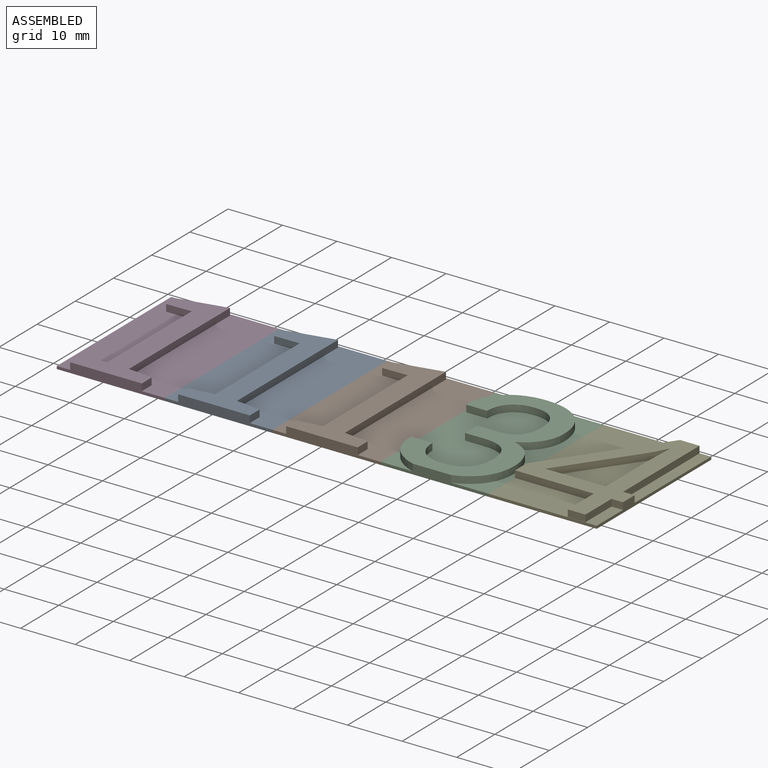
[diagram: assembled view]
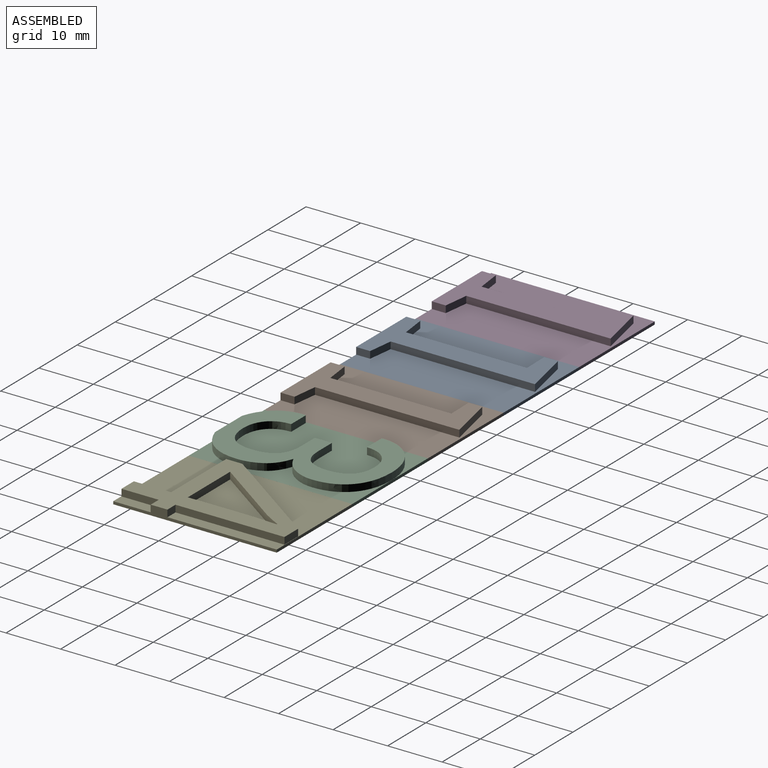
[diagram: assembled view, second angle]
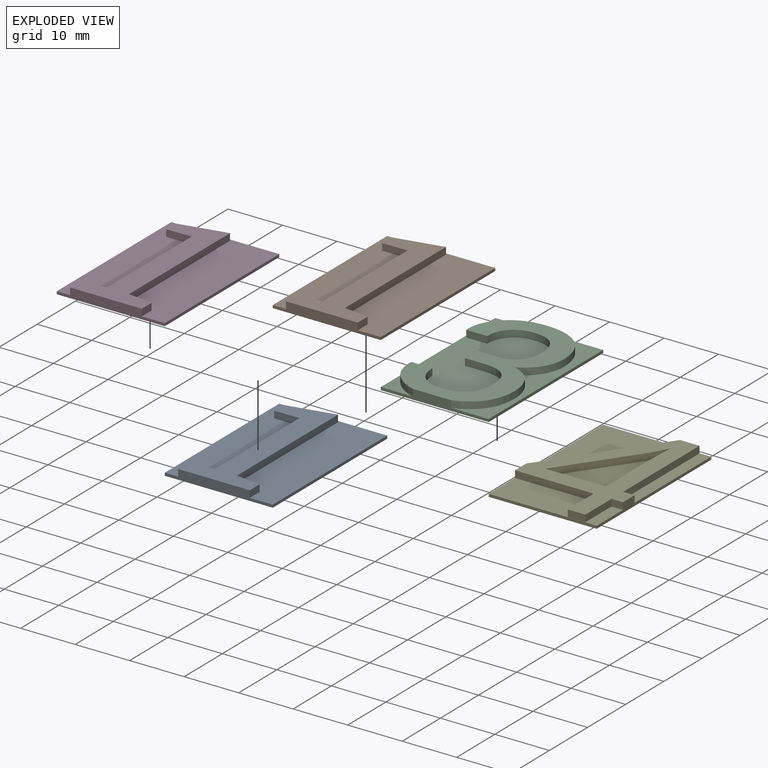
[diagram: exploded view]
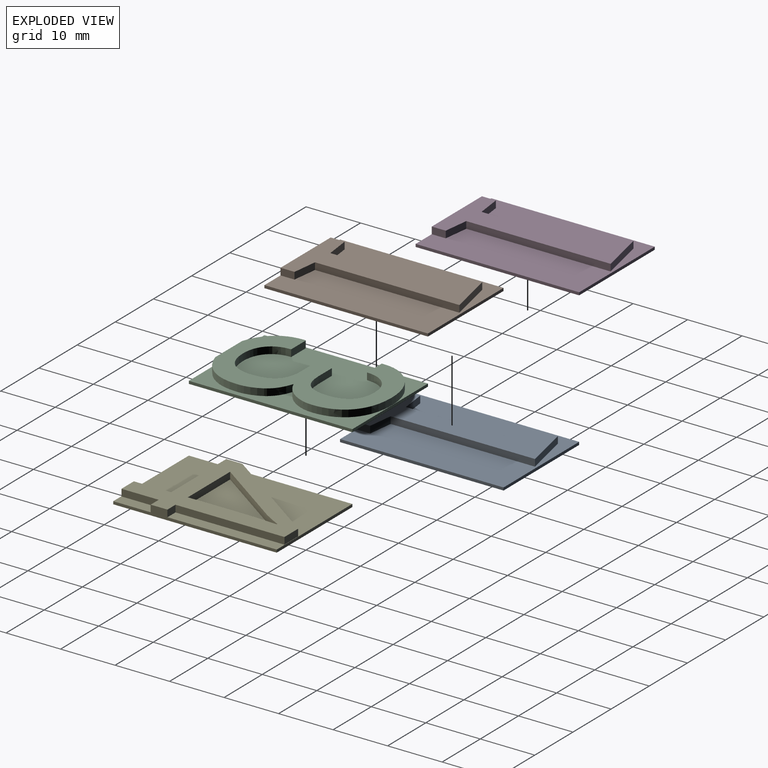
[diagram: exploded view, second angle]
ASSEMBLY  parts=5 mates=4
PART A: 17 faces, bbox 19.8x30x1.8 mm
  f0: plane 4.58x1.27mm, normal (-0.12,0.99,0), area 5.9mm2, adj f1,f9,f10,f16
  f1: plane 2.57x1.27mm, normal (-1,0,0), area 3.3mm2, adj f0,f2,f10,f16
  f2: plane 13.15x1.28mm, normal (0,-1,0), area 16.7mm2, adj f1,f3,f10,f13
  f3: plane 2.57x1.27mm, normal (1,0,0), area 3.3mm2, adj f2,f4,f10,f16
  f4: plane 4.56x1.27mm, normal (0.12,0.99,0), area 5.8mm2, adj f3,f5,f10,f16
  f5: plane 26.49x1.27mm, normal (1,0,0), area 33.6mm2, adj f4,f6,f10,f16
  f6: plane 8.66x1.87mm, normal (-0.21,0.98,0), area 11.3mm2, adj f5,f7,f10,f16
  f7: plane 2.51x1.27mm, normal (-1,0,0), area 3.2mm2, adj f6,f8,f10,f16
  f8: plane 4.65x1.27mm, normal (0.02,-1,0), area 5.9mm2, adj f7,f9,f10,f16
  f9: plane 22.2x1.27mm, normal (-1,0,0), area 28.2mm2, adj f0,f8,f10,f16
  f10: plane 29.62x13.22mm, normal (0,0,1), area 156.9mm2, adj f0,f1,f2,f3,f4,f5,f6,f7
  f11: plane 19.81x0.51mm, normal (0,1,0), area 10.1mm2, adj f12,f14,f15,f16
  f12: plane 30x0.51mm, normal (-1,0,0), area 15.2mm2, adj f11,f13,f15,f16
  f13: plane 19.82x0.51mm, normal (0,-1,0), area 10.1mm2, adj f2,f12,f14,f15,f16
  f14: plane 30x0.51mm, normal (1,0,0), area 15.2mm2, adj f11,f13,f15,f16
  f15: plane 30x19.81mm, normal (0,0,-1), area 594.4mm2, adj f11,f12,f13,f14
  f16: plane 30x19.81mm, normal (0,0,1), area 437.5mm2, adj f0,f1,f3,f4,f5,f6,f7,f8
PART B: same geometry as A
PART C: 38 faces, bbox 19.8x30.1x1.8 mm
  f0: extruded ~3.27x1.82mm, area 4.8mm2, adj f1,f31,f32,f37
  f1: extruded ~6.37x2.65mm, area 9.1mm2, adj f0,f2,f32,f37
  f2: extruded ~4.19x1.27mm, area 5.6mm2, adj f1,f3,f32,f37
  f3: extruded ~3.78x2.74mm, area 6.1mm2, adj f2,f4,f32,f37
  f4: extruded ~3.33x2.78mm, area 5.6mm2, adj f3,f5,f32,f37
  f5: extruded ~3.65x1.27mm, area 4.9mm2, adj f4,f6,f32,f37
  f6: extruded ~6.24x2.44mm, area 8.8mm2, adj f5,f7,f32,f37
  f7: extruded ~6.56x2.19mm, area 9mm2, adj f6,f8,f32,f37
  f8: extruded ~6.62x2.35mm, area 9.1mm2, adj f7,f9,f32,f37
  f9: extruded ~5.71x2.43mm, area 8.1mm2, adj f8,f10,f32,f37
  f10: plane 1.27x0.12mm, normal (-0.95,-0.3,0), area 0.2mm2, adj f9,f11,f32,f37
  f11: plane 3.85x1.27mm, normal (0,-1,0), area 4.9mm2, adj f10,f12,f32,f37
  f12: extruded ~3.65x1.41mm, area 5.1mm2, adj f11,f13,f32,f37
  f13: extruded ~3.75x1.37mm, area 5.2mm2, adj f12,f14,f32,f37
  f14: extruded ~3.72x1.32mm, area 5.2mm2, adj f13,f15,f32,f37
  f15: extruded ~3.87x1.27mm, area 5.3mm2, adj f14,f16,f32,f37
  f16: extruded ~3.71x1.27mm, area 5mm2, adj f15,f17,f32,f37
  f17: extruded ~3.77x1.33mm, area 5.3mm2, adj f16,f18,f32,f37
  f18: plane 3.5x1.27mm, normal (0,1,0), area 4.4mm2, adj f17,f19,f32,f37
  f19: plane 3.13x1.27mm, normal (-1,0,0), area 4mm2, adj f18,f20,f32,f37
  f20: plane 3.5x1.27mm, normal (0,-1,0), area 4.4mm2, adj f19,f21,f32,f37
  f21: extruded ~4.05x1.3mm, area 5.5mm2, adj f20,f22,f32,f37
  f22: extruded ~4.05x1.28mm, area 5.5mm2, adj f21,f23,f32,f37
  f23: extruded ~4.09x1.45mm, area 5.7mm2, adj f22,f24,f32,f37
  f24: extruded ~3.99x1.38mm, area 5.5mm2, adj f23,f25,f32,f37
  f25: extruded ~3.94x1.38mm, area 5.4mm2, adj f24,f26,f32,f37
  f26: extruded ~3.72x1.44mm, area 5.2mm2, adj f25,f27,f32,f37
  f27: plane 3.82x1.27mm, normal (0,1,0), area 4.9mm2, adj f26,f28,f32,f37
  f28: plane 1.27x0.12mm, normal (-0.88,0.47,0), area 0.2mm2, adj f27,f29,f32,f37
  f29: extruded ~5.93x2.55mm, area 8.5mm2, adj f28,f30,f32,f37
  f30: extruded ~3.15x1.69mm, area 4.6mm2, adj f29,f31,f32,f37
  f31: plane 19.81x1.78mm, normal (0,-1,0), area 19.1mm2, adj f0,f30,f32,f34,f35,f36,f37
  f32: plane 30.06x18.8mm, normal (0,0,1), area 230.4mm2, adj f0,f1,f2,f3,f4,f5,f6,f7
  f33: plane 19.81x0.51mm, normal (0,1,0), area 10.1mm2, adj f34,f35,f36,f37
  f34: plane 30x0.51mm, normal (-1,0,0), area 15.2mm2, adj f31,f33,f36,f37
  f35: plane 30x0.51mm, normal (1,0,0), area 15.2mm2, adj f31,f33,f36,f37
  f36: plane 30x19.81mm, normal (0,0,-1), area 594.4mm2, adj f31,f33,f34,f35
  f37: plane 30.07x19.81mm, normal (0,0,1), area 364mm2, adj f0,f1,f2,f3,f4,f5,f6,f7
PART D: same geometry as A
PART E: 25 faces, bbox 19.8x30x1.8 mm
  f0: plane 9.89x1.27mm, normal (-1,0,0), area 12.6mm2, adj f1,f16,f17,f18
  f1: plane 11.08x1.27mm, normal (0,1,0), area 14.1mm2, adj f0,f2,f17,f18
  f2: plane 13.22x9.29mm, normal (0.82,-0.58,0), area 20.5mm2, adj f1,f3,f17,f18
  f3: extruded ~3.23x1.84mm, area 4.7mm2, adj f2,f4,f17,f18
  f4: plane 1.27x0.16mm, normal (0,-1,0), area 0.2mm2, adj f3,f16,f17,f18
  f5: plane 2.11x1.27mm, normal (0,-1,0), area 2.7mm2, adj f6,f15,f17,f19
  f6: plane 30x1.78mm, normal (1,0,0), area 19.1mm2, adj f5,f7,f17,f19,f20,f21,f23,f24
  f7: plane 2.11x1.27mm, normal (0,1,0), area 2.7mm2, adj f6,f8,f17,f20
  f8: plane 19.99x1.27mm, normal (1,0,0), area 25.4mm2, adj f7,f9,f17,f20
  f9: plane 3.58x1.27mm, normal (0,1,0), area 4.5mm2, adj f8,f10,f17,f20
  f10: plane 20.12x14.12mm, normal (-0.82,0.57,0), area 31.2mm2, adj f9,f11,f17,f20
  f11: plane 2.97x1.29mm, normal (-1,0,0), area 3.7mm2, adj f10,f12,f17,f22
  f12: plane 14.47x1.27mm, normal (0,-1,0), area 18.4mm2, adj f11,f13,f17,f19
  f13: plane 6.83x1.27mm, normal (-1,0,0), area 8.7mm2, adj f12,f14,f17,f19
  f14: plane 3.23x1.27mm, normal (0,-1,0), area 4.1mm2, adj f13,f15,f17,f19
  f15: plane 6.83x1.27mm, normal (1,0,0), area 8.7mm2, adj f5,f14,f17,f19
  f16: extruded ~6.57x1.27mm, area 8.3mm2, adj f0,f4,f17,f18
  f17: plane 29.9x19.8mm, normal (0,0,1), area 206.5mm2, adj f0,f1,f2,f3,f4,f5,f6,f7
  f18: plane 16.45x11.29mm, normal (0,0,1), area 88.3mm2, adj f0,f1,f2,f3,f4,f16
  f19: plane 19.81x6.88mm, normal (0,0,1), area 114.1mm2, adj f5,f6,f12,f13,f14,f15,f22,f23
  f20: plane 20.18x19.81mm, normal (0,0,1), area 185.5mm2, adj f6,f7,f8,f9,f10,f21,f22
  f21: plane 19.81x0.51mm, normal (0,1,0), area 10.1mm2, adj f6,f20,f22,f24
  f22: plane 30.02x0.53mm, normal (-1,0,0), area 15.2mm2, adj f11,f19,f20,f21,f23,f24
  f23: plane 19.81x0.51mm, normal (0,-1,0), area 10.1mm2, adj f6,f19,f22,f24
  f24: plane 30x19.81mm, normal (0,0,-1), area 594.4mm2, adj f6,f21,f22,f23
PLACE A t=(-45.25,8.08,1.39)mm
PLACE B t=(-25.44,8.08,1.39)mm
PLACE C t=(-23.9,-6.72,1.39)mm
PLACE D t=(-65.06,8.08,1.39)mm
PLACE E t=(43.36,8.21,1.39)mm
MATE fastened E.f20 <-> C.f37  axis (0,0,1) through (57.99,4.03,1.39)mm
MATE fastened A.f16 <-> D.f16  axis (0,0,1) through (-1.45,-0.88,1.39)mm
MATE fastened C.f37 <-> B.f16  axis (0,0,1) through (38.17,-0.88,1.39)mm
MATE fastened B.f16 <-> A.f16  axis (0,0,1) through (18.36,-0.88,1.39)mm
